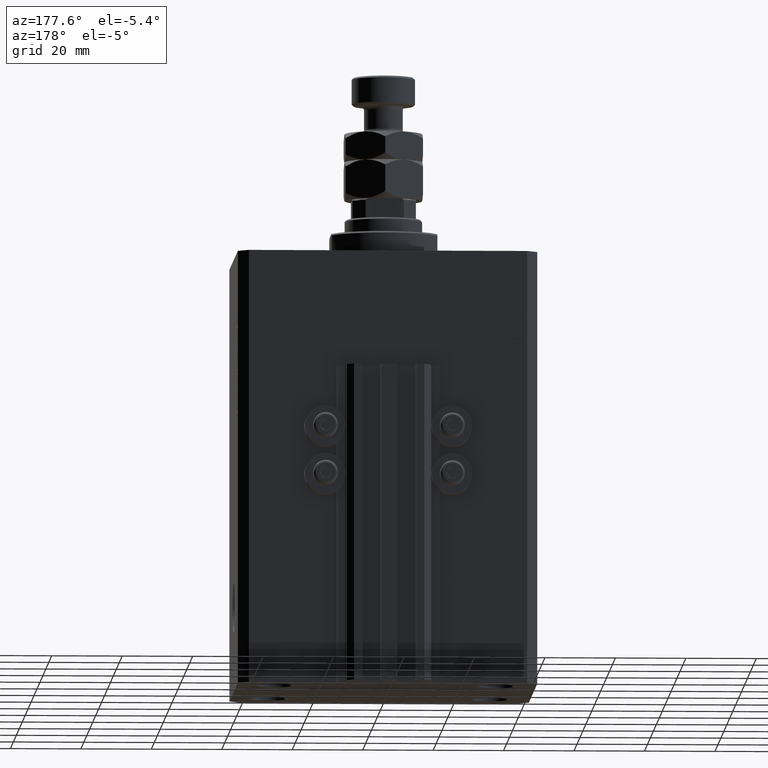
[diagram: clean part render]
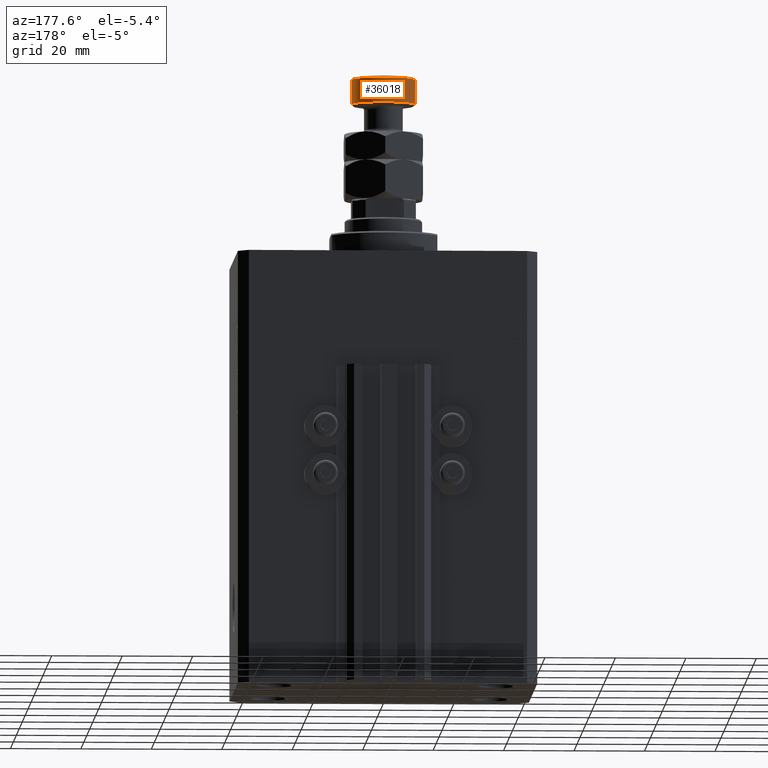
[diagram: same view with one face highlighted and labeled with its STEP entity id]
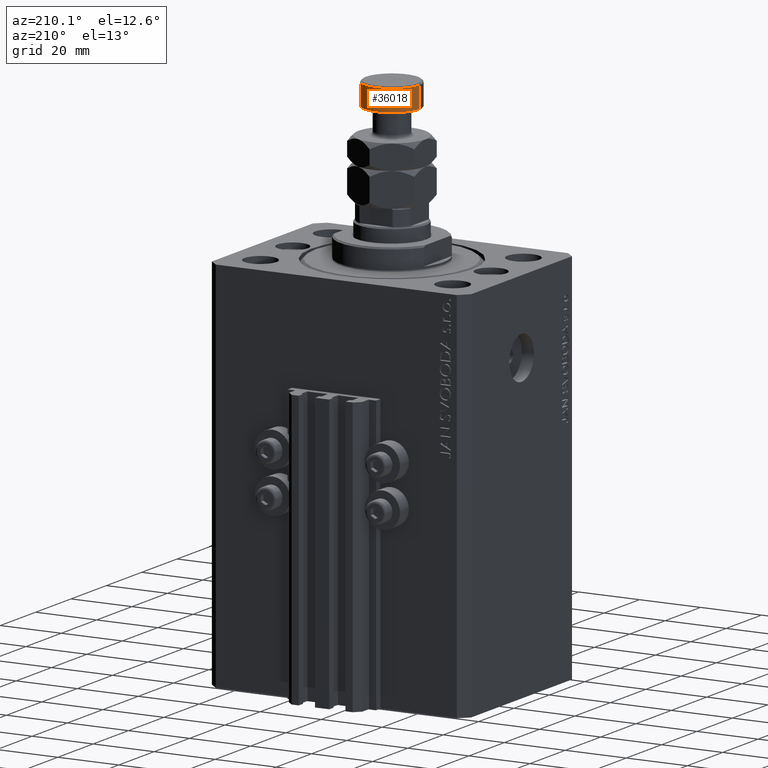
[diagram: same view with one face highlighted and labeled with its STEP entity id]
A machine part, auxiliary view. The second image highlights one B-rep face of the part: STEP entity #36018.
A second angle (auxiliary view) of the same face is appended — the face is thin or edge-on in the first view.
In plain terms, the highlighted cylindrical surface (edge-blend (fillet) strip) has radius 9 mm, axis along (-0, -0, -1).
Its self-contained STEP definition (entity closure, byte-faithful):
#753 = DIRECTION ( 'NONE',  ( 1.000000000000000000, 0.000000000000000000, 0.000000000000000000 ) ) ;
#2677 = VERTEX_POINT ( 'NONE', #2872 ) ;
#2872 = CARTESIAN_POINT ( 'NONE',  ( -9.000000000000000000, 0.000000000000000000, 27.50000000000000000 ) ) ;
#4351 = EDGE_CURVE ( 'NONE', #35613, #2677, #27417, .T. ) ;
#5456 = CARTESIAN_POINT ( 'NONE',  ( 9.000000000000000000, 1.102182119232617714E-15, 34.49999999999999289 ) ) ;
#9437 = EDGE_CURVE ( 'NONE', #30311, #2677, #41810, .T. ) ;
#12819 = CARTESIAN_POINT ( 'NONE',  ( 9.000000000000000000, 1.102182119232617714E-15, 35.00000000000000000 ) ) ;
#12984 = ORIENTED_EDGE ( 'NONE', *, *, #4351, .T. ) ;
#13163 = EDGE_LOOP ( 'NONE', ( #33840, #30663, #12984, #48832 ) ) ;
#14133 = CYLINDRICAL_SURFACE ( 'NONE', #46370, 9.000000000000000000 ) ;
#15573 = CARTESIAN_POINT ( 'NONE',  ( 0.000000000000000000, 0.000000000000000000, 27.50000000000000000 ) ) ;
#16803 = EDGE_CURVE ( 'NONE', #30311, #44108, #25317, .T. ) ;
#18402 = CARTESIAN_POINT ( 'NONE',  ( -9.000000000000000000, 0.000000000000000000, 35.00000000000000000 ) ) ;
#23178 = CARTESIAN_POINT ( 'NONE',  ( 0.000000000000000000, 0.000000000000000000, 34.49999999999999289 ) ) ;
#23966 = VECTOR ( 'NONE', #32343, 1000.000000000000000 ) ;
#24180 = LINE ( 'NONE', #12819, #23966 ) ;
#24360 = EDGE_CURVE ( 'NONE', #44108, #35613, #24180, .T. ) ;
#25317 = CIRCLE ( 'NONE', #32414, 9.000000000000000000 ) ;
#27417 = CIRCLE ( 'NONE', #37699, 9.000000000000000000 ) ;
#29225 = CARTESIAN_POINT ( 'NONE',  ( 0.000000000000000000, 0.000000000000000000, 35.00000000000000000 ) ) ;
#30311 = VERTEX_POINT ( 'NONE', #33766 ) ;
#30663 = ORIENTED_EDGE ( 'NONE', *, *, #24360, .T. ) ;
#30671 = DIRECTION ( 'NONE',  ( -0.000000000000000000, -0.000000000000000000, 1.000000000000000000 ) ) ;
#30863 = DIRECTION ( 'NONE',  ( 0.000000000000000000, 0.000000000000000000, -1.000000000000000000 ) ) ;
#32343 = DIRECTION ( 'NONE',  ( -0.000000000000000000, -0.000000000000000000, -1.000000000000000000 ) ) ;
#32414 = AXIS2_PLACEMENT_3D ( 'NONE', #23178, #30863, #42216 ) ;
#33187 = FACE_OUTER_BOUND ( 'NONE', #13163, .T. ) ;
#33764 = VECTOR ( 'NONE', #48313, 1000.000000000000000 ) ;
#33766 = CARTESIAN_POINT ( 'NONE',  ( -9.000000000000000000, 0.000000000000000000, 34.49999999999999289 ) ) ;
#33840 = ORIENTED_EDGE ( 'NONE', *, *, #16803, .T. ) ;
#35613 = VERTEX_POINT ( 'NONE', #44101 ) ;
#36018 = ADVANCED_FACE ( 'NONE', ( #33187 ), #14133, .T. ) ;
#36886 = DIRECTION ( 'NONE',  ( -1.000000000000000000, 0.000000000000000000, 0.000000000000000000 ) ) ;
#37699 = AXIS2_PLACEMENT_3D ( 'NONE', #15573, #30671, #753 ) ;
#41810 = LINE ( 'NONE', #18402, #33764 ) ;
#42216 = DIRECTION ( 'NONE',  ( 1.000000000000000000, 0.000000000000000000, 0.000000000000000000 ) ) ;
#44101 = CARTESIAN_POINT ( 'NONE',  ( 9.000000000000000000, 1.102182119232617714E-15, 27.50000000000000000 ) ) ;
#44108 = VERTEX_POINT ( 'NONE', #5456 ) ;
#46370 = AXIS2_PLACEMENT_3D ( 'NONE', #29225, #48241, #36886 ) ;
#48241 = DIRECTION ( 'NONE',  ( -0.000000000000000000, -0.000000000000000000, -1.000000000000000000 ) ) ;
#48313 = DIRECTION ( 'NONE',  ( -0.000000000000000000, -0.000000000000000000, -1.000000000000000000 ) ) ;
#48832 = ORIENTED_EDGE ( 'NONE', *, *, #9437, .F. ) ;